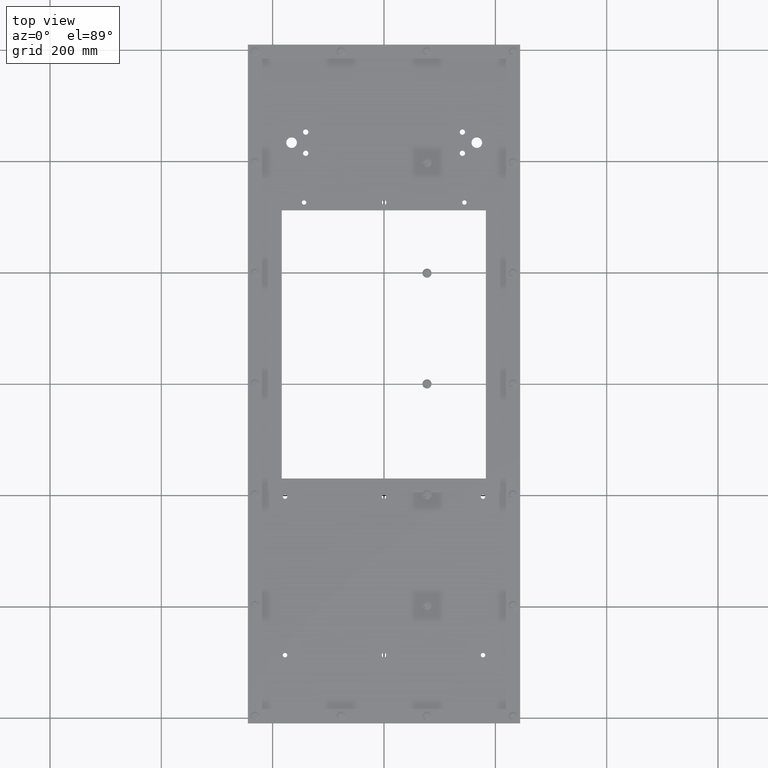
[diagram: clean part render]
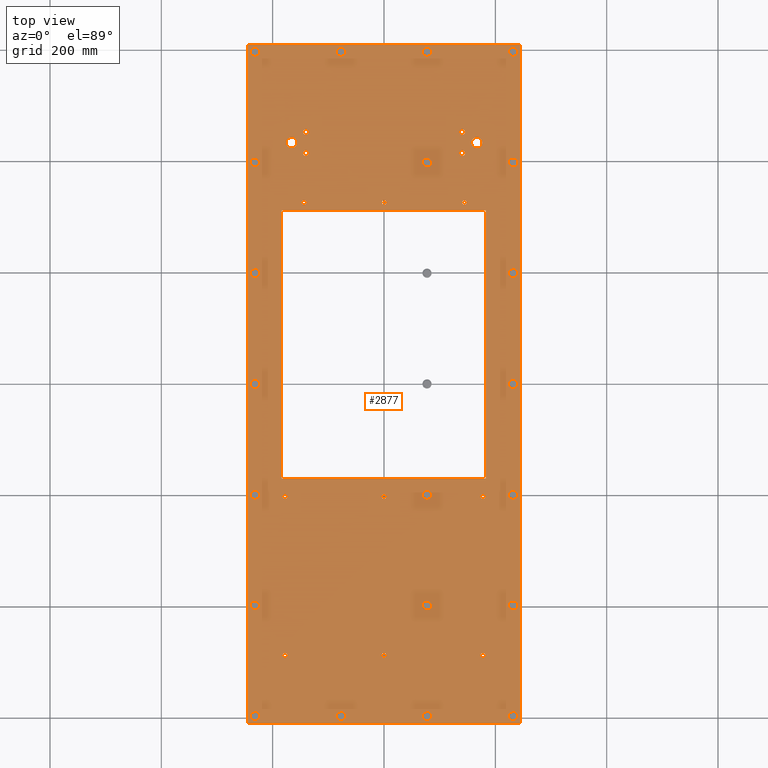
[diagram: same view with one face highlighted and labeled with its STEP entity id]
A machine part, top view. The second image highlights one B-rep face of the part: STEP entity #2877.
In plain terms, the highlighted planar face has unit normal (0, 0, 1).
Its self-contained STEP definition (entity closure, byte-faithful):
#226=FACE_BOUND('',#846,.T.);
#227=FACE_BOUND('',#847,.T.);
#228=FACE_BOUND('',#848,.T.);
#229=FACE_BOUND('',#849,.T.);
#230=FACE_BOUND('',#850,.T.);
#231=FACE_BOUND('',#851,.T.);
#232=FACE_BOUND('',#852,.T.);
#233=FACE_BOUND('',#853,.T.);
#234=FACE_BOUND('',#854,.T.);
#235=FACE_BOUND('',#855,.T.);
#236=FACE_BOUND('',#856,.T.);
#237=FACE_BOUND('',#857,.T.);
#238=FACE_BOUND('',#858,.T.);
#239=FACE_BOUND('',#859,.T.);
#240=FACE_BOUND('',#860,.T.);
#241=FACE_BOUND('',#861,.T.);
#242=FACE_BOUND('',#862,.T.);
#243=FACE_BOUND('',#863,.T.);
#244=FACE_BOUND('',#864,.T.);
#245=FACE_BOUND('',#865,.T.);
#246=FACE_BOUND('',#866,.T.);
#247=FACE_BOUND('',#867,.T.);
#248=FACE_BOUND('',#868,.T.);
#249=FACE_BOUND('',#869,.T.);
#250=FACE_BOUND('',#870,.T.);
#251=FACE_BOUND('',#871,.T.);
#252=FACE_BOUND('',#872,.T.);
#253=FACE_BOUND('',#873,.T.);
#254=FACE_BOUND('',#874,.T.);
#255=FACE_BOUND('',#875,.T.);
#256=FACE_BOUND('',#876,.T.);
#257=FACE_BOUND('',#877,.T.);
#258=FACE_BOUND('',#878,.T.);
#259=FACE_BOUND('',#879,.T.);
#383=CIRCLE('',#3010,0.375);
#385=CIRCLE('',#3013,0.375);
#387=CIRCLE('',#3016,0.187499999999999);
#389=CIRCLE('',#3019,0.187499999999999);
#391=CIRCLE('',#3022,0.187499999999999);
#393=CIRCLE('',#3025,0.187499999999999);
#395=CIRCLE('',#3028,0.156250000000001);
#397=CIRCLE('',#3031,0.156250000000001);
#399=CIRCLE('',#3034,0.156250000000001);
#401=CIRCLE('',#3037,0.156249999999999);
#403=CIRCLE('',#3040,0.156249999999999);
#405=CIRCLE('',#3043,0.156249999999999);
#407=CIRCLE('',#3046,0.156249999999999);
#409=CIRCLE('',#3049,0.156249999999999);
#411=CIRCLE('',#3052,0.156249999999999);
#412=CIRCLE('',#3054,0.140625);
#414=CIRCLE('',#3057,0.140625);
#416=CIRCLE('',#3060,0.140625);
#418=CIRCLE('',#3063,0.140625);
#420=CIRCLE('',#3066,0.140625);
#422=CIRCLE('',#3069,0.140625);
#424=CIRCLE('',#3072,0.140625);
#426=CIRCLE('',#3075,0.140625);
#428=CIRCLE('',#3078,0.140625);
#430=CIRCLE('',#3081,0.140625);
#432=CIRCLE('',#3084,0.140625);
#434=CIRCLE('',#3087,0.140625);
#436=CIRCLE('',#3090,0.140625);
#438=CIRCLE('',#3093,0.140625);
#440=CIRCLE('',#3096,0.140625);
#442=CIRCLE('',#3099,0.140625);
#444=CIRCLE('',#3102,0.140625);
#446=CIRCLE('',#3105,0.140625);
#652=FACE_OUTER_BOUND('',#845,.T.);
#845=EDGE_LOOP('',(#2085,#2086,#2087,#2088));
#846=EDGE_LOOP('',(#2089,#2090,#2091,#2092));
#847=EDGE_LOOP('',(#2093));
#848=EDGE_LOOP('',(#2094));
#849=EDGE_LOOP('',(#2095));
#850=EDGE_LOOP('',(#2096));
#851=EDGE_LOOP('',(#2097));
#852=EDGE_LOOP('',(#2098));
#853=EDGE_LOOP('',(#2099));
#854=EDGE_LOOP('',(#2100));
#855=EDGE_LOOP('',(#2101));
#856=EDGE_LOOP('',(#2102));
#857=EDGE_LOOP('',(#2103));
#858=EDGE_LOOP('',(#2104));
#859=EDGE_LOOP('',(#2105));
#860=EDGE_LOOP('',(#2106));
#861=EDGE_LOOP('',(#2107));
#862=EDGE_LOOP('',(#2108));
#863=EDGE_LOOP('',(#2109));
#864=EDGE_LOOP('',(#2110));
#865=EDGE_LOOP('',(#2111));
#866=EDGE_LOOP('',(#2112));
#867=EDGE_LOOP('',(#2113));
#868=EDGE_LOOP('',(#2114));
#869=EDGE_LOOP('',(#2115));
#870=EDGE_LOOP('',(#2116));
#871=EDGE_LOOP('',(#2117));
#872=EDGE_LOOP('',(#2118));
#873=EDGE_LOOP('',(#2119));
#874=EDGE_LOOP('',(#2120));
#875=EDGE_LOOP('',(#2121));
#876=EDGE_LOOP('',(#2122));
#877=EDGE_LOOP('',(#2123));
#878=EDGE_LOOP('',(#2124));
#879=EDGE_LOOP('',(#2125));
#1122=LINE('',#4223,#1263);
#1125=LINE('',#4229,#1266);
#1128=LINE('',#4235,#1269);
#1131=LINE('',#4239,#1272);
#1132=LINE('',#4408,#1273);
#1136=LINE('',#4416,#1277);
#1139=LINE('',#4422,#1280);
#1142=LINE('',#4427,#1283);
#1263=VECTOR('',#3366,18.96);
#1266=VECTOR('',#3371,14.44);
#1269=VECTOR('',#3376,18.96);
#1272=VECTOR('',#3381,14.44);
#1273=VECTOR('',#3582,48.);
#1277=VECTOR('',#3588,19.25);
#1280=VECTOR('',#3593,48.);
#1283=VECTOR('',#3598,19.25);
#1404=VERTEX_POINT('',#4220);
#1405=VERTEX_POINT('',#4222);
#1407=VERTEX_POINT('',#4228);
#1409=VERTEX_POINT('',#4234);
#1411=VERTEX_POINT('',#4243);
#1413=VERTEX_POINT('',#4248);
#1415=VERTEX_POINT('',#4253);
#1417=VERTEX_POINT('',#4258);
#1419=VERTEX_POINT('',#4263);
#1421=VERTEX_POINT('',#4268);
#1423=VERTEX_POINT('',#4273);
#1425=VERTEX_POINT('',#4278);
#1427=VERTEX_POINT('',#4283);
#1429=VERTEX_POINT('',#4288);
#1431=VERTEX_POINT('',#4293);
#1433=VERTEX_POINT('',#4298);
#1435=VERTEX_POINT('',#4303);
#1437=VERTEX_POINT('',#4308);
#1439=VERTEX_POINT('',#4313);
#1440=VERTEX_POINT('',#4316);
#1442=VERTEX_POINT('',#4321);
#1444=VERTEX_POINT('',#4326);
#1446=VERTEX_POINT('',#4331);
#1448=VERTEX_POINT('',#4336);
#1450=VERTEX_POINT('',#4341);
#1452=VERTEX_POINT('',#4346);
#1454=VERTEX_POINT('',#4351);
#1456=VERTEX_POINT('',#4356);
#1458=VERTEX_POINT('',#4361);
#1460=VERTEX_POINT('',#4366);
#1462=VERTEX_POINT('',#4371);
#1464=VERTEX_POINT('',#4376);
#1466=VERTEX_POINT('',#4381);
#1468=VERTEX_POINT('',#4386);
#1470=VERTEX_POINT('',#4391);
#1472=VERTEX_POINT('',#4396);
#1474=VERTEX_POINT('',#4401);
#1476=VERTEX_POINT('',#4406);
#1477=VERTEX_POINT('',#4407);
#1480=VERTEX_POINT('',#4415);
#1482=VERTEX_POINT('',#4421);
#1662=EDGE_CURVE('',#1405,#1404,#1122,.T.);
#1665=EDGE_CURVE('',#1407,#1405,#1125,.T.);
#1668=EDGE_CURVE('',#1409,#1407,#1128,.T.);
#1671=EDGE_CURVE('',#1404,#1409,#1131,.T.);
#1673=EDGE_CURVE('',#1411,#1411,#383,.T.);
#1675=EDGE_CURVE('',#1413,#1413,#385,.T.);
#1677=EDGE_CURVE('',#1415,#1415,#387,.T.);
#1679=EDGE_CURVE('',#1417,#1417,#389,.T.);
#1681=EDGE_CURVE('',#1419,#1419,#391,.T.);
#1683=EDGE_CURVE('',#1421,#1421,#393,.T.);
#1685=EDGE_CURVE('',#1423,#1423,#395,.T.);
#1687=EDGE_CURVE('',#1425,#1425,#397,.T.);
#1689=EDGE_CURVE('',#1427,#1427,#399,.T.);
#1691=EDGE_CURVE('',#1429,#1429,#401,.T.);
#1693=EDGE_CURVE('',#1431,#1431,#403,.T.);
#1695=EDGE_CURVE('',#1433,#1433,#405,.T.);
#1697=EDGE_CURVE('',#1435,#1435,#407,.T.);
#1699=EDGE_CURVE('',#1437,#1437,#409,.T.);
#1701=EDGE_CURVE('',#1439,#1439,#411,.T.);
#1702=EDGE_CURVE('',#1440,#1440,#412,.T.);
#1704=EDGE_CURVE('',#1442,#1442,#414,.T.);
#1706=EDGE_CURVE('',#1444,#1444,#416,.T.);
#1708=EDGE_CURVE('',#1446,#1446,#418,.T.);
#1710=EDGE_CURVE('',#1448,#1448,#420,.T.);
#1712=EDGE_CURVE('',#1450,#1450,#422,.T.);
#1714=EDGE_CURVE('',#1452,#1452,#424,.T.);
#1716=EDGE_CURVE('',#1454,#1454,#426,.T.);
#1718=EDGE_CURVE('',#1456,#1456,#428,.T.);
#1720=EDGE_CURVE('',#1458,#1458,#430,.T.);
#1722=EDGE_CURVE('',#1460,#1460,#432,.T.);
#1724=EDGE_CURVE('',#1462,#1462,#434,.T.);
#1726=EDGE_CURVE('',#1464,#1464,#436,.T.);
#1728=EDGE_CURVE('',#1466,#1466,#438,.T.);
#1730=EDGE_CURVE('',#1468,#1468,#440,.T.);
#1732=EDGE_CURVE('',#1470,#1470,#442,.T.);
#1734=EDGE_CURVE('',#1472,#1472,#444,.T.);
#1736=EDGE_CURVE('',#1474,#1474,#446,.T.);
#1738=EDGE_CURVE('',#1476,#1477,#1132,.T.);
#1742=EDGE_CURVE('',#1477,#1480,#1136,.T.);
#1745=EDGE_CURVE('',#1480,#1482,#1139,.T.);
#1748=EDGE_CURVE('',#1482,#1476,#1142,.T.);
#2085=ORIENTED_EDGE('',*,*,#1738,.F.);
#2086=ORIENTED_EDGE('',*,*,#1748,.F.);
#2087=ORIENTED_EDGE('',*,*,#1745,.F.);
#2088=ORIENTED_EDGE('',*,*,#1742,.F.);
#2089=ORIENTED_EDGE('',*,*,#1662,.T.);
#2090=ORIENTED_EDGE('',*,*,#1671,.T.);
#2091=ORIENTED_EDGE('',*,*,#1668,.T.);
#2092=ORIENTED_EDGE('',*,*,#1665,.T.);
#2093=ORIENTED_EDGE('',*,*,#1673,.T.);
#2094=ORIENTED_EDGE('',*,*,#1675,.T.);
#2095=ORIENTED_EDGE('',*,*,#1677,.T.);
#2096=ORIENTED_EDGE('',*,*,#1679,.T.);
#2097=ORIENTED_EDGE('',*,*,#1681,.T.);
#2098=ORIENTED_EDGE('',*,*,#1683,.T.);
#2099=ORIENTED_EDGE('',*,*,#1685,.T.);
#2100=ORIENTED_EDGE('',*,*,#1687,.T.);
#2101=ORIENTED_EDGE('',*,*,#1689,.T.);
#2102=ORIENTED_EDGE('',*,*,#1691,.T.);
#2103=ORIENTED_EDGE('',*,*,#1693,.T.);
#2104=ORIENTED_EDGE('',*,*,#1695,.T.);
#2105=ORIENTED_EDGE('',*,*,#1697,.T.);
#2106=ORIENTED_EDGE('',*,*,#1699,.T.);
#2107=ORIENTED_EDGE('',*,*,#1701,.T.);
#2108=ORIENTED_EDGE('',*,*,#1702,.T.);
#2109=ORIENTED_EDGE('',*,*,#1704,.T.);
#2110=ORIENTED_EDGE('',*,*,#1706,.T.);
#2111=ORIENTED_EDGE('',*,*,#1708,.T.);
#2112=ORIENTED_EDGE('',*,*,#1710,.T.);
#2113=ORIENTED_EDGE('',*,*,#1712,.T.);
#2114=ORIENTED_EDGE('',*,*,#1714,.T.);
#2115=ORIENTED_EDGE('',*,*,#1716,.T.);
#2116=ORIENTED_EDGE('',*,*,#1718,.T.);
#2117=ORIENTED_EDGE('',*,*,#1720,.T.);
#2118=ORIENTED_EDGE('',*,*,#1722,.T.);
#2119=ORIENTED_EDGE('',*,*,#1724,.T.);
#2120=ORIENTED_EDGE('',*,*,#1726,.T.);
#2121=ORIENTED_EDGE('',*,*,#1728,.T.);
#2122=ORIENTED_EDGE('',*,*,#1730,.T.);
#2123=ORIENTED_EDGE('',*,*,#1732,.T.);
#2124=ORIENTED_EDGE('',*,*,#1734,.T.);
#2125=ORIENTED_EDGE('',*,*,#1736,.T.);
#2649=PLANE('',#3111);
#2877=ADVANCED_FACE('',(#652,#226,#227,#228,#229,#230,#231,#232,#233,#234,
#235,#236,#237,#238,#239,#240,#241,#242,#243,#244,#245,#246,#247,#248,#249,
#250,#251,#252,#253,#254,#255,#256,#257,#258,#259),#2649,.T.);
#3010=AXIS2_PLACEMENT_3D('',#4244,#3386,#3387);
#3013=AXIS2_PLACEMENT_3D('',#4249,#3392,#3393);
#3016=AXIS2_PLACEMENT_3D('',#4254,#3398,#3399);
#3019=AXIS2_PLACEMENT_3D('',#4259,#3404,#3405);
#3022=AXIS2_PLACEMENT_3D('',#4264,#3410,#3411);
#3025=AXIS2_PLACEMENT_3D('',#4269,#3416,#3417);
#3028=AXIS2_PLACEMENT_3D('',#4274,#3422,#3423);
#3031=AXIS2_PLACEMENT_3D('',#4279,#3428,#3429);
#3034=AXIS2_PLACEMENT_3D('',#4284,#3434,#3435);
#3037=AXIS2_PLACEMENT_3D('',#4289,#3440,#3441);
#3040=AXIS2_PLACEMENT_3D('',#4294,#3446,#3447);
#3043=AXIS2_PLACEMENT_3D('',#4299,#3452,#3453);
#3046=AXIS2_PLACEMENT_3D('',#4304,#3458,#3459);
#3049=AXIS2_PLACEMENT_3D('',#4309,#3464,#3465);
#3052=AXIS2_PLACEMENT_3D('',#4314,#3470,#3471);
#3054=AXIS2_PLACEMENT_3D('',#4317,#3474,#3475);
#3057=AXIS2_PLACEMENT_3D('',#4322,#3480,#3481);
#3060=AXIS2_PLACEMENT_3D('',#4327,#3486,#3487);
#3063=AXIS2_PLACEMENT_3D('',#4332,#3492,#3493);
#3066=AXIS2_PLACEMENT_3D('',#4337,#3498,#3499);
#3069=AXIS2_PLACEMENT_3D('',#4342,#3504,#3505);
#3072=AXIS2_PLACEMENT_3D('',#4347,#3510,#3511);
#3075=AXIS2_PLACEMENT_3D('',#4352,#3516,#3517);
#3078=AXIS2_PLACEMENT_3D('',#4357,#3522,#3523);
#3081=AXIS2_PLACEMENT_3D('',#4362,#3528,#3529);
#3084=AXIS2_PLACEMENT_3D('',#4367,#3534,#3535);
#3087=AXIS2_PLACEMENT_3D('',#4372,#3540,#3541);
#3090=AXIS2_PLACEMENT_3D('',#4377,#3546,#3547);
#3093=AXIS2_PLACEMENT_3D('',#4382,#3552,#3553);
#3096=AXIS2_PLACEMENT_3D('',#4387,#3558,#3559);
#3099=AXIS2_PLACEMENT_3D('',#4392,#3564,#3565);
#3102=AXIS2_PLACEMENT_3D('',#4397,#3570,#3571);
#3105=AXIS2_PLACEMENT_3D('',#4402,#3576,#3577);
#3111=AXIS2_PLACEMENT_3D('',#4429,#3600,#3601);
#3366=DIRECTION('',(-1.47542845227437E-16,1.,0.));
#3371=DIRECTION('',(-1.,0.,0.));
#3376=DIRECTION('',(7.37714226137185E-17,-1.,0.));
#3381=DIRECTION('',(1.,0.,0.));
#3386=DIRECTION('center_axis',(0.,0.,-1.));
#3387=DIRECTION('ref_axis',(-1.,0.,0.));
#3392=DIRECTION('center_axis',(0.,0.,-1.));
#3393=DIRECTION('ref_axis',(-1.,0.,0.));
#3398=DIRECTION('center_axis',(0.,0.,-1.));
#3399=DIRECTION('ref_axis',(-1.,0.,0.));
#3404=DIRECTION('center_axis',(0.,0.,-1.));
#3405=DIRECTION('ref_axis',(-1.,0.,0.));
#3410=DIRECTION('center_axis',(0.,0.,-1.));
#3411=DIRECTION('ref_axis',(-1.,0.,0.));
#3416=DIRECTION('center_axis',(0.,0.,-1.));
#3417=DIRECTION('ref_axis',(-1.,0.,0.));
#3422=DIRECTION('center_axis',(0.,0.,-1.));
#3423=DIRECTION('ref_axis',(-1.,0.,0.));
#3428=DIRECTION('center_axis',(0.,0.,-1.));
#3429=DIRECTION('ref_axis',(-1.,0.,0.));
#3434=DIRECTION('center_axis',(0.,0.,-1.));
#3435=DIRECTION('ref_axis',(-1.,0.,0.));
#3440=DIRECTION('center_axis',(0.,0.,-1.));
#3441=DIRECTION('ref_axis',(-1.,0.,0.));
#3446=DIRECTION('center_axis',(0.,0.,-1.));
#3447=DIRECTION('ref_axis',(-1.,0.,0.));
#3452=DIRECTION('center_axis',(0.,0.,-1.));
#3453=DIRECTION('ref_axis',(-1.,0.,0.));
#3458=DIRECTION('center_axis',(0.,0.,-1.));
#3459=DIRECTION('ref_axis',(-1.,0.,0.));
#3464=DIRECTION('center_axis',(0.,0.,-1.));
#3465=DIRECTION('ref_axis',(-1.,0.,0.));
#3470=DIRECTION('center_axis',(0.,0.,-1.));
#3471=DIRECTION('ref_axis',(-1.,0.,0.));
#3474=DIRECTION('center_axis',(0.,0.,-1.));
#3475=DIRECTION('ref_axis',(1.,0.,0.));
#3480=DIRECTION('center_axis',(0.,0.,-1.));
#3481=DIRECTION('ref_axis',(1.,0.,0.));
#3486=DIRECTION('center_axis',(0.,0.,-1.));
#3487=DIRECTION('ref_axis',(1.,0.,0.));
#3492=DIRECTION('center_axis',(0.,0.,-1.));
#3493=DIRECTION('ref_axis',(1.,0.,0.));
#3498=DIRECTION('center_axis',(0.,0.,-1.));
#3499=DIRECTION('ref_axis',(1.,0.,0.));
#3504=DIRECTION('center_axis',(0.,0.,-1.));
#3505=DIRECTION('ref_axis',(1.,0.,0.));
#3510=DIRECTION('center_axis',(0.,0.,-1.));
#3511=DIRECTION('ref_axis',(1.,0.,0.));
#3516=DIRECTION('center_axis',(0.,0.,-1.));
#3517=DIRECTION('ref_axis',(1.,0.,0.));
#3522=DIRECTION('center_axis',(0.,0.,-1.));
#3523=DIRECTION('ref_axis',(1.,0.,0.));
#3528=DIRECTION('center_axis',(0.,0.,-1.));
#3529=DIRECTION('ref_axis',(1.,0.,0.));
#3534=DIRECTION('center_axis',(0.,0.,-1.));
#3535=DIRECTION('ref_axis',(1.,0.,0.));
#3540=DIRECTION('center_axis',(0.,0.,-1.));
#3541=DIRECTION('ref_axis',(1.,0.,0.));
#3546=DIRECTION('center_axis',(0.,0.,-1.));
#3547=DIRECTION('ref_axis',(1.,0.,0.));
#3552=DIRECTION('center_axis',(0.,0.,-1.));
#3553=DIRECTION('ref_axis',(1.,0.,0.));
#3558=DIRECTION('center_axis',(0.,0.,-1.));
#3559=DIRECTION('ref_axis',(1.,0.,0.));
#3564=DIRECTION('center_axis',(0.,0.,-1.));
#3565=DIRECTION('ref_axis',(1.,0.,0.));
#3570=DIRECTION('center_axis',(0.,0.,-1.));
#3571=DIRECTION('ref_axis',(1.,0.,0.));
#3576=DIRECTION('center_axis',(0.,0.,-1.));
#3577=DIRECTION('ref_axis',(1.,0.,0.));
#3582=DIRECTION('',(0.,-1.,0.));
#3588=DIRECTION('',(-1.,-1.4532012184479E-16,0.));
#3593=DIRECTION('',(-1.74838271594513E-16,1.,0.));
#3598=DIRECTION('',(1.,0.,0.));
#3600=DIRECTION('center_axis',(0.,0.,1.));
#3601=DIRECTION('ref_axis',(1.,0.,0.));
#4220=CARTESIAN_POINT('',(-7.235,12.275,0.125));
#4222=CARTESIAN_POINT('',(-7.235,-6.68499999999999,0.125));
#4223=CARTESIAN_POINT('',(-7.235,6.1375,0.125));
#4228=CARTESIAN_POINT('',(7.205,-6.68499999999999,0.125));
#4229=CARTESIAN_POINT('',(-3.6175,-6.68499999999999,0.125));
#4234=CARTESIAN_POINT('',(7.20499999999999,12.275,0.125));
#4235=CARTESIAN_POINT('',(7.205,-3.3425,0.125));
#4239=CARTESIAN_POINT('',(3.6025,12.275,0.125));
#4243=CARTESIAN_POINT('',(6.94000000000004,17.0650000000004,0.125));
#4244=CARTESIAN_POINT('Origin',(6.56500000000004,17.0650000000004,0.125));
#4248=CARTESIAN_POINT('',(-6.16,17.065,0.125));
#4249=CARTESIAN_POINT('Origin',(-6.53500000000001,17.065,0.125));
#4253=CARTESIAN_POINT('',(5.73250000000016,16.3149999999999,0.125));
#4254=CARTESIAN_POINT('Origin',(5.54500000000016,16.3149999999999,0.125));
#4258=CARTESIAN_POINT('',(5.73250000000001,17.8150000000002,0.125));
#4259=CARTESIAN_POINT('Origin',(5.54500000000001,17.8150000000002,0.125));
#4263=CARTESIAN_POINT('',(-5.34749999999984,16.3149999999999,0.125));
#4264=CARTESIAN_POINT('Origin',(-5.53499999999983,16.3149999999999,0.125));
#4268=CARTESIAN_POINT('',(-5.34750000000001,17.815,0.125));
#4269=CARTESIAN_POINT('Origin',(-5.53500000000001,17.815,0.125));
#4273=CARTESIAN_POINT('',(5.84125,12.835,0.125));
#4274=CARTESIAN_POINT('Origin',(5.685,12.835,0.125));
#4278=CARTESIAN_POINT('',(0.171249999999997,12.835,0.125));
#4279=CARTESIAN_POINT('Origin',(0.0149999999999965,12.835,0.125));
#4283=CARTESIAN_POINT('',(-5.49875,12.835,0.125));
#4284=CARTESIAN_POINT('Origin',(-5.655,12.835,0.125));
#4288=CARTESIAN_POINT('',(-6.84375,-7.9725,0.125));
#4289=CARTESIAN_POINT('Origin',(-7.,-7.9725,0.125));
#4293=CARTESIAN_POINT('',(0.15625,-7.9725,0.125));
#4294=CARTESIAN_POINT('Origin',(6.99353086378051E-16,-7.9725,0.125));
#4298=CARTESIAN_POINT('',(7.15625000000001,-7.97249999999999,0.125));
#4299=CARTESIAN_POINT('Origin',(7.00000000000001,-7.97249999999999,0.125));
#4303=CARTESIAN_POINT('',(-6.84375,-19.1825,0.125));
#4304=CARTESIAN_POINT('Origin',(-7.,-19.1825,0.125));
#4308=CARTESIAN_POINT('',(0.156250000000002,-19.1825,0.125));
#4309=CARTESIAN_POINT('Origin',(2.79741234551221E-15,-19.1825,0.125));
#4313=CARTESIAN_POINT('',(7.15625,-19.1825,0.125));
#4314=CARTESIAN_POINT('Origin',(7.,-19.1825,0.125));
#4316=CARTESIAN_POINT('',(9.265625,-23.5,0.125));
#4317=CARTESIAN_POINT('Origin',(9.125,-23.5,0.125));
#4321=CARTESIAN_POINT('',(3.18229166666667,-23.5,0.125));
#4322=CARTESIAN_POINT('Origin',(3.04166666666667,-23.5,0.125));
#4326=CARTESIAN_POINT('',(-2.90104166666666,-23.5,0.125));
#4327=CARTESIAN_POINT('Origin',(-3.04166666666666,-23.5,0.125));
#4331=CARTESIAN_POINT('',(-8.984375,-23.5,0.125));
#4332=CARTESIAN_POINT('Origin',(-9.125,-23.5,0.125));
#4336=CARTESIAN_POINT('',(9.265625,-15.6666666666667,0.125));
#4337=CARTESIAN_POINT('Origin',(9.125,-15.6666666666667,0.125));
#4341=CARTESIAN_POINT('',(-8.984375,-15.6666666666667,0.125));
#4342=CARTESIAN_POINT('Origin',(-9.125,-15.6666666666667,0.125));
#4346=CARTESIAN_POINT('',(9.265625,-7.83333333333333,0.125));
#4347=CARTESIAN_POINT('Origin',(9.125,-7.83333333333333,0.125));
#4351=CARTESIAN_POINT('',(-8.984375,-7.83333333333333,0.125));
#4352=CARTESIAN_POINT('Origin',(-9.125,-7.83333333333333,0.125));
#4356=CARTESIAN_POINT('',(9.265625,5.59482469102441E-15,0.125));
#4357=CARTESIAN_POINT('Origin',(9.125,5.59482469102441E-15,0.125));
#4361=CARTESIAN_POINT('',(-8.984375,5.59482469102441E-15,0.125));
#4362=CARTESIAN_POINT('Origin',(-9.125,5.59482469102441E-15,0.125));
#4366=CARTESIAN_POINT('',(9.265625,7.83333333333334,0.125));
#4367=CARTESIAN_POINT('Origin',(9.125,7.83333333333334,0.125));
#4371=CARTESIAN_POINT('',(-8.98437500000001,7.83333333333334,0.125));
#4372=CARTESIAN_POINT('Origin',(-9.125,7.83333333333334,0.125));
#4376=CARTESIAN_POINT('',(9.26562499999999,15.6666666666667,0.125));
#4377=CARTESIAN_POINT('Origin',(9.12499999999999,15.6666666666667,0.125));
#4381=CARTESIAN_POINT('',(-8.98437500000001,15.6666666666667,0.125));
#4382=CARTESIAN_POINT('Origin',(-9.125,15.6666666666667,0.125));
#4386=CARTESIAN_POINT('',(9.26562499999999,23.5,0.125));
#4387=CARTESIAN_POINT('Origin',(9.12499999999999,23.5,0.125));
#4391=CARTESIAN_POINT('',(3.18229166666666,23.5,0.125));
#4392=CARTESIAN_POINT('Origin',(3.04166666666666,23.5,0.125));
#4396=CARTESIAN_POINT('',(-2.90104166666667,23.5,0.125));
#4397=CARTESIAN_POINT('Origin',(-3.04166666666667,23.5,0.125));
#4401=CARTESIAN_POINT('',(-8.98437500000001,23.5,0.125));
#4402=CARTESIAN_POINT('Origin',(-9.12500000000001,23.5,0.125));
#4406=CARTESIAN_POINT('',(9.625,24.,0.125));
#4407=CARTESIAN_POINT('',(9.625,-24.,0.125));
#4408=CARTESIAN_POINT('',(9.625,24.,0.125));
#4415=CARTESIAN_POINT('',(-9.625,-24.,0.125));
#4416=CARTESIAN_POINT('',(9.625,-24.,0.125));
#4421=CARTESIAN_POINT('',(-9.625,24.,0.125));
#4422=CARTESIAN_POINT('',(-9.625,-24.,0.125));
#4427=CARTESIAN_POINT('',(-9.625,24.,0.125));
#4429=CARTESIAN_POINT('Origin',(-2.09805925913415E-15,1.3987061727561E-15,
0.125));